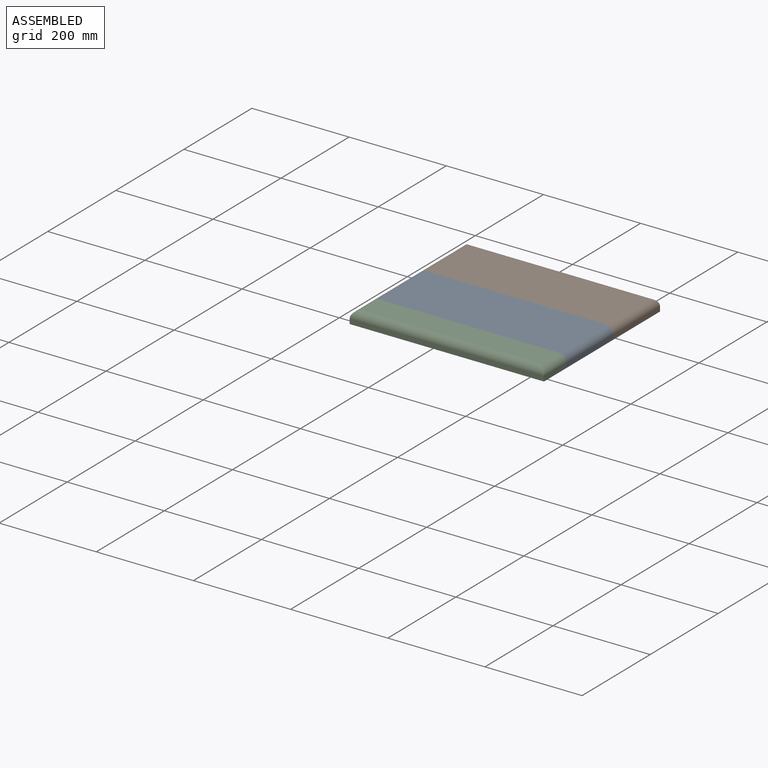
[diagram: assembled view]
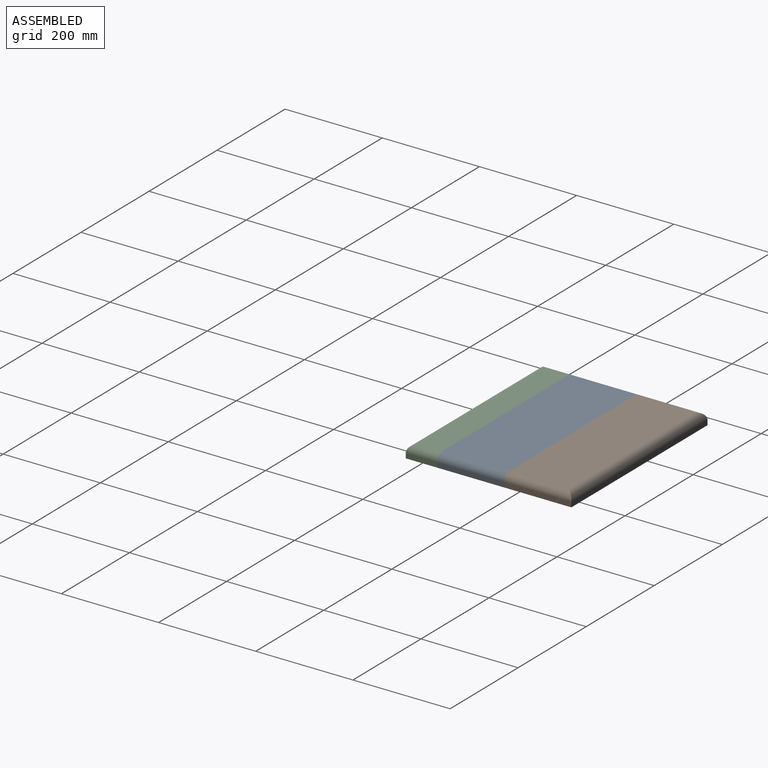
[diagram: assembled view, second angle]
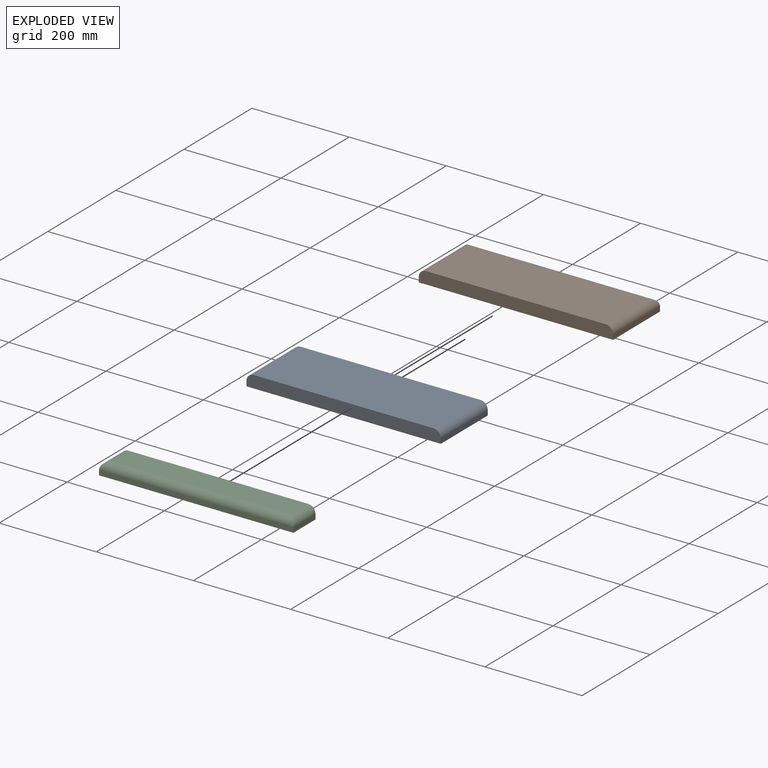
[diagram: exploded view]
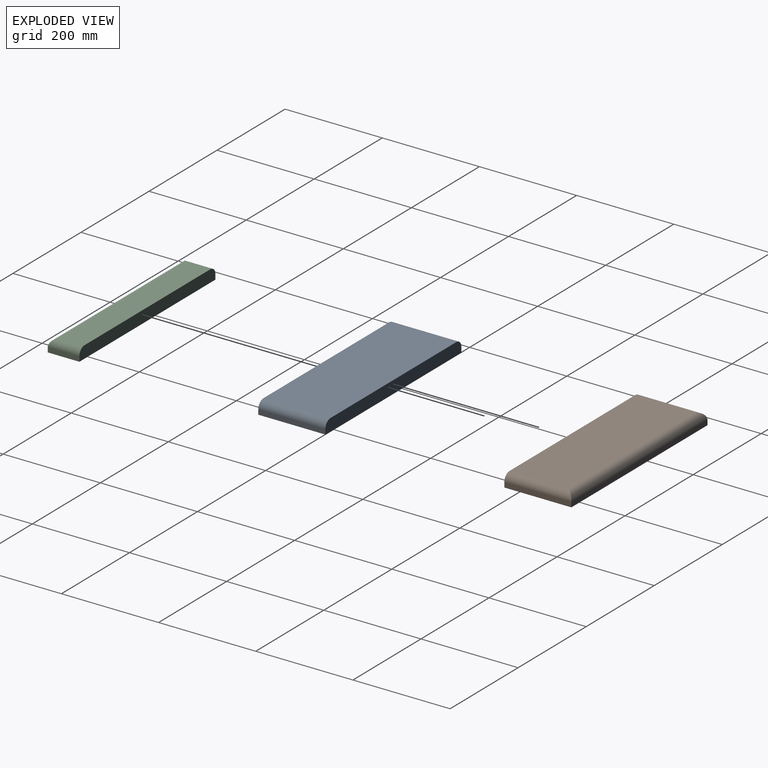
[diagram: exploded view, second angle]
ASSEMBLY  parts=3 mates=2
PART A: 8 faces, bbox 400x138x25 mm
  f0: plane 400x25mm, normal (0,1,0), area 9903.4mm2, adj f1,f3,f4,f5,f6,f7
  f1: plane 138x10mm, normal (-1,0,0), area 1380mm2, adj f0,f2,f5,f6
  f2: plane 400x25mm, normal (0,-1,0), area 9903.4mm2, adj f1,f3,f4,f5,f6,f7
  f3: plane 138x10mm, normal (1,0,0), area 1380mm2, adj f0,f2,f5,f7
  f4: plane 370x138mm, normal (0,0,1), area 51060mm2, adj f0,f2,f6,f7
  f5: plane 400x138mm, normal (0,0,-1), area 55200mm2, adj f0,f1,f2,f3
  f6: cylinder r=15mm len=138mm, axis (0,1,0), area 3251.5mm2, adj f0,f1,f2,f4
  f7: cylinder r=15mm len=138mm, axis (0,-1,0), area 3251.5mm2, adj f0,f2,f3,f4
PART B: 9 faces, bbox 400x138x25 mm
  f0: plane 138x10mm, normal (-1,0,0), area 1380mm2, adj f1,f3,f5,f6
  f1: plane 400x25mm, normal (0,-1,0), area 9903.4mm2, adj f0,f2,f4,f5,f6,f8
  f2: plane 138x10mm, normal (1,0,0), area 1380mm2, adj f1,f3,f5,f8
  f3: plane 400x10mm, normal (0,1,0), area 4000mm2, adj f0,f2,f5,f7
  f4: plane 370x123mm, normal (0,0,1), area 45510mm2, adj f1,f6,f7,f8
  f5: plane 400x138mm, normal (0,0,-1), area 55200mm2, adj f0,f1,f2,f3
  f6: cylinder r=15mm len=138mm, axis (0,1,0), area 3123.1mm2, adj f0,f1,f4,f7
  f7: cylinder r=15mm len=400mm, axis (1,0,0), area 9167.9mm2, adj f3,f4,f6,f8
  f8: cylinder r=15mm len=138mm, axis (0,-1,0), area 3123.1mm2, adj f1,f2,f4,f7
PART C: 9 faces, bbox 400x65x25 mm
  f0: plane 400x25mm, normal (0,1,0), area 9903.4mm2, adj f1,f3,f4,f5,f6,f7
  f1: plane 65x10mm, normal (-1,0,0), area 650mm2, adj f0,f2,f5,f6
  f2: plane 400x10mm, normal (0,-1,0), area 4000mm2, adj f1,f3,f5,f8
  f3: plane 65x10mm, normal (1,0,0), area 650mm2, adj f0,f2,f5,f7
  f4: plane 370x50mm, normal (0,0,1), area 18500mm2, adj f0,f6,f7,f8
  f5: plane 400x65mm, normal (0,0,-1), area 26000mm2, adj f0,f1,f2,f3
  f6: cylinder r=15mm len=65mm, axis (0,1,0), area 1403.1mm2, adj f0,f1,f4,f8
  f7: cylinder r=15mm len=65mm, axis (0,-1,0), area 1403.1mm2, adj f0,f3,f4,f8
  f8: cylinder r=15mm len=400mm, axis (-1,0,0), area 9167.9mm2, adj f2,f4,f6,f7
PLACE A at identity
PLACE B t=(31.35,-171.54,0)mm
PLACE C t=(-62.85,117.03,0)mm
MATE fastened C.f0 <-> A.f2  axis (0,1,0) through (38.52,-359.49,12.41)mm
MATE revolute B.f1 <-> A.f0  axis (0,-1,0) through (38.52,-221.49,12.41)mm
